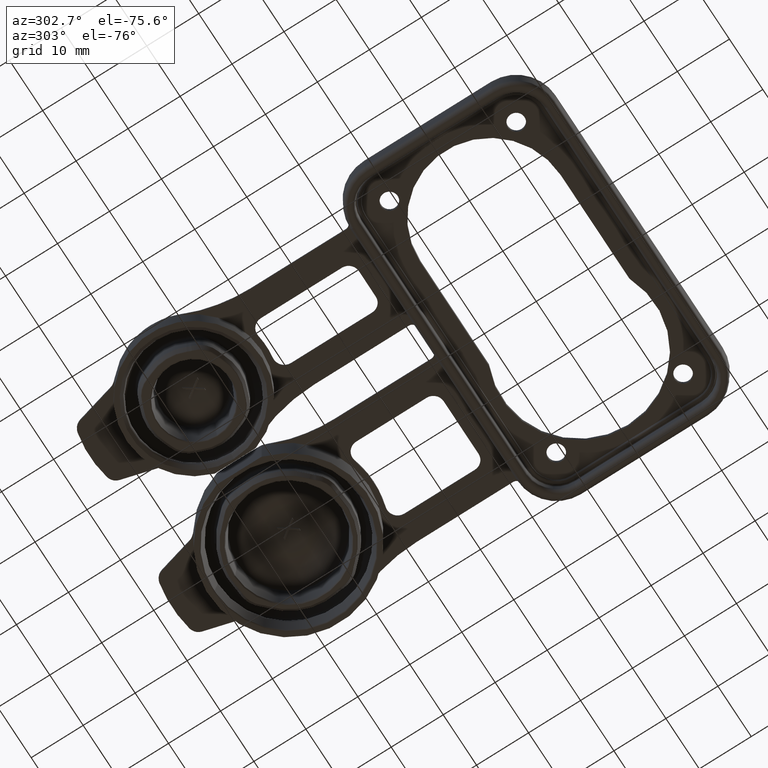
[diagram: clean part render]
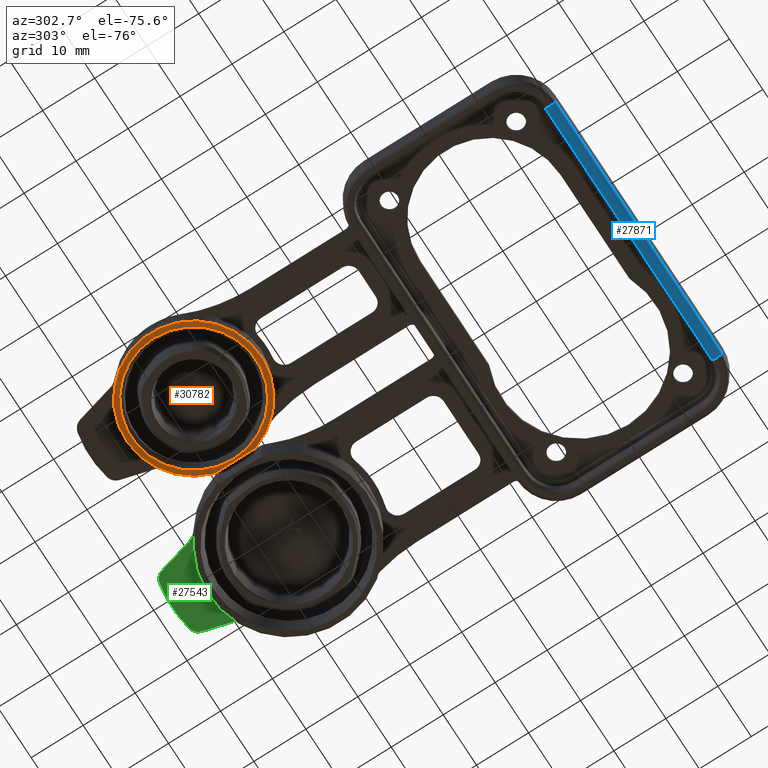
[diagram: same view with three faces highlighted in distinct colors, each labeled with its STEP entity id]
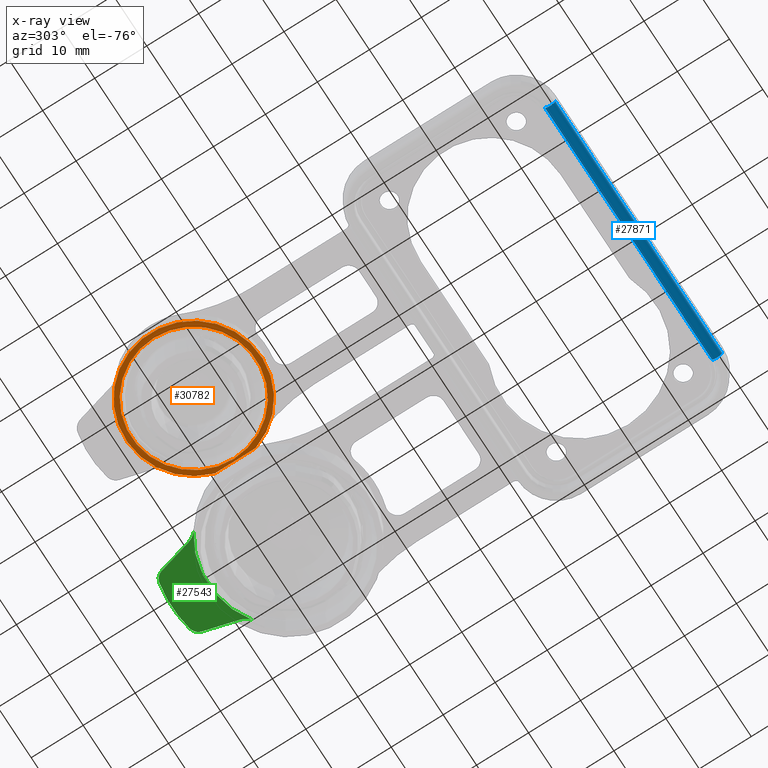
[diagram: x-ray of the same camera — body ghosted, the three highlighted faces saturated]
A machine part, auxiliary view with three faces highlighted in distinct colors.
The next image is the same camera in x-ray (body ghosted, the three faces saturated) — at least one of them is partly hidden behind the body in this view.
Their STEP definitions:

[orange] entity #30782 — the highlighted planar face has unit normal (0, 0, 1).
#10950=CARTESIAN_POINT('',(-1.54E1,5.6E1,-4.8E0));
#10951=DIRECTION('',(0.E0,0.E0,-1.E0));
#10952=DIRECTION('',(9.508196721311E-1,-3.097449775031E-1,0.E0));
#10953=AXIS2_PLACEMENT_3D('',#10950,#10951,#10952);
#10985=CARTESIAN_POINT('',(-1.54E1,5.6E1,-4.8E0));
#10986=DIRECTION('',(0.E0,0.E0,1.E0));
#10987=DIRECTION('',(-1.E0,0.E0,0.E0));
#10988=AXIS2_PLACEMENT_3D('',#10985,#10986,#10987);
#10990=CARTESIAN_POINT('',(-1.54E1,5.6E1,-4.8E0));
#10991=DIRECTION('',(0.E0,0.E0,-1.E0));
#10992=DIRECTION('',(-1.E0,0.E0,0.E0));
#10993=AXIS2_PLACEMENT_3D('',#10990,#10991,#10992);
#10995=CARTESIAN_POINT('',(-3.8E0,5.222111127446E1,-4.8E0));
#10996=DIRECTION('',(0.E0,0.E0,-1.E0));
#10997=DIRECTION('',(1.E0,0.E0,0.E0));
#10998=AXIS2_PLACEMENT_3D('',#10995,#10996,#10997);
#11000=DIRECTION('',(0.E0,1.E0,0.E0));
#11001=VECTOR('',#11000,7.557777451076E0);
#11002=CARTESIAN_POINT('',(-3.E0,5.222111127446E1,-4.8E0));
#11003=LINE('',#11002,#11001);
#11004=CARTESIAN_POINT('',(-3.8E0,5.977888872554E1,-4.8E0));
#11005=DIRECTION('',(0.E0,0.E0,-1.E0));
#11006=DIRECTION('',(9.508196721312E-1,3.097449775031E-1,0.E0));
#11007=AXIS2_PLACEMENT_3D('',#11004,#11005,#11006);
#16863=CARTESIAN_POINT('',(-2.74E1,5.6E1,-4.8E0));
#16864=VERTEX_POINT('',#16863);
#16873=CARTESIAN_POINT('',(-3.4E0,5.6E1,-4.8E0));
#16874=VERTEX_POINT('',#16873);
#18318=CARTESIAN_POINT('',(-3.E0,5.222111127446E1,-4.8E0));
#18319=CARTESIAN_POINT('',(-3.039344262295E0,5.197331529246E1,-4.8E0));
#18320=VERTEX_POINT('',#18318);
#18321=VERTEX_POINT('',#18319);
#18332=CARTESIAN_POINT('',(-3.039344262295E0,6.002668470754E1,-4.8E0));
#18333=CARTESIAN_POINT('',(-3.E0,5.977888872554E1,-4.8E0));
#18334=VERTEX_POINT('',#18332);
#18335=VERTEX_POINT('',#18333);
#30763=CARTESIAN_POINT('',(-1.54E1,5.6E1,-4.8E0));
#30764=DIRECTION('',(0.E0,0.E0,1.E0));
#30765=DIRECTION('',(-1.E0,0.E0,0.E0));
#30766=AXIS2_PLACEMENT_3D('',#30763,#30764,#30765);
#30767=PLANE('',#30766);
#30768=ORIENTED_EDGE('',*,*,#30753,.F.);
#30770=ORIENTED_EDGE('',*,*,#30769,.T.);
#30772=ORIENTED_EDGE('',*,*,#30771,.F.);
#30773=ORIENTED_EDGE('',*,*,#30727,.F.);
#30774=EDGE_LOOP('',(#30768,#30770,#30772,#30773));
#30775=FACE_OUTER_BOUND('',#30774,.F.);
#30777=ORIENTED_EDGE('',*,*,#30776,.F.);
#30779=ORIENTED_EDGE('',*,*,#30778,.T.);
#30780=EDGE_LOOP('',(#30777,#30779));
#30781=FACE_BOUND('',#30780,.F.);
#30782=ADVANCED_FACE('',(#30775,#30781),#30767,.F.);
#10954=CIRCLE('',#10953,1.3E1);
#10989=CIRCLE('',#10988,1.2E1);
#10994=CIRCLE('',#10993,1.2E1);
#10999=CIRCLE('',#10998,8.E-1);
#11008=CIRCLE('',#11007,8.E-1);
#30727=EDGE_CURVE('',#18321,#18334,#10954,.T.);
#30753=EDGE_CURVE('',#18320,#18321,#10999,.T.);
#30769=EDGE_CURVE('',#18320,#18335,#11003,.T.);
#30771=EDGE_CURVE('',#18334,#18335,#11008,.T.);
#30776=EDGE_CURVE('',#16864,#16874,#10989,.T.);
#30778=EDGE_CURVE('',#16864,#16874,#10994,.T.);

[blue] entity #27871 — the highlighted cylindrical surface (edge-blend (fillet) strip) has radius 1 mm, axis along (-1, 0, 0).
#7370=DIRECTION('',(-1.E0,0.E0,0.E0));
#7371=VECTOR('',#7370,5.E1);
#7372=CARTESIAN_POINT('',(2.5E1,-1.77E1,-2.E0));
#7373=LINE('',#7372,#7371);
#7378=CARTESIAN_POINT('',(2.5E1,-1.87E1,-2.E0));
#7379=DIRECTION('',(-1.E0,0.E0,0.E0));
#7380=DIRECTION('',(0.E0,1.E0,0.E0));
#7381=AXIS2_PLACEMENT_3D('',#7378,#7379,#7380);
#7391=DIRECTION('',(1.E0,0.E0,0.E0));
#7392=VECTOR('',#7391,5.E1);
#7393=CARTESIAN_POINT('',(-2.5E1,-1.97E1,-2.E0));
#7394=LINE('',#7393,#7392);
#7426=CARTESIAN_POINT('',(-2.5E1,-1.87E1,-2.E0));
#7427=DIRECTION('',(-1.E0,0.E0,0.E0));
#7428=DIRECTION('',(0.E0,1.E0,0.E0));
#7429=AXIS2_PLACEMENT_3D('',#7426,#7427,#7428);
#15065=CARTESIAN_POINT('',(-2.5E1,-1.97E1,-2.E0));
#15066=CARTESIAN_POINT('',(2.5E1,-1.97E1,-2.E0));
#15067=VERTEX_POINT('',#15065);
#15068=VERTEX_POINT('',#15066);
#15085=CARTESIAN_POINT('',(2.5E1,-1.77E1,-2.E0));
#15086=VERTEX_POINT('',#15085);
#15087=CARTESIAN_POINT('',(-2.5E1,-1.77E1,-2.E0));
#15088=VERTEX_POINT('',#15087);
#27858=CARTESIAN_POINT('',(2.5E1,-1.87E1,-2.E0));
#27859=DIRECTION('',(-1.E0,0.E0,0.E0));
#27860=DIRECTION('',(0.E0,1.E0,0.E0));
#27861=AXIS2_PLACEMENT_3D('',#27858,#27859,#27860);
#27862=CYLINDRICAL_SURFACE('',#27861,1.E0);
#27864=ORIENTED_EDGE('',*,*,#27863,.T.);
#27865=ORIENTED_EDGE('',*,*,#27826,.F.);
#27866=ORIENTED_EDGE('',*,*,#27849,.T.);
#27868=ORIENTED_EDGE('',*,*,#27867,.T.);
#27869=EDGE_LOOP('',(#27864,#27865,#27866,#27868));
#27870=FACE_OUTER_BOUND('',#27869,.F.);
#27871=ADVANCED_FACE('',(#27870),#27862,.T.);
#7382=CIRCLE('',#7381,1.E0);
#7430=CIRCLE('',#7429,1.E0);
#27826=EDGE_CURVE('',#15086,#15068,#7382,.T.);
#27849=EDGE_CURVE('',#15086,#15088,#7373,.T.);
#27863=EDGE_CURVE('',#15067,#15068,#7394,.T.);
#27867=EDGE_CURVE('',#15088,#15067,#7430,.T.);

[green] entity #27543 — the highlighted planar face has unit normal (0, 0, 1).
#5694=CARTESIAN_POINT('',(1.3E1,5.6E1,-5.E-1));
#5695=DIRECTION('',(0.E0,0.E0,1.E0));
#5696=DIRECTION('',(5.762100873116E-1,8.173016183028E-1,0.E0));
#5697=AXIS2_PLACEMENT_3D('',#5694,#5695,#5696);
#7116=CARTESIAN_POINT('',(2.360226560653E1,7.103834977677E1,-5.E-1));
#7117=DIRECTION('',(0.E0,0.E0,1.E0));
#7118=DIRECTION('',(-9.659258262891E-1,-2.588190451025E-1,0.E0));
#7119=AXIS2_PLACEMENT_3D('',#7116,#7117,#7118);
#7162=CARTESIAN_POINT('',(8.899184695864E0,7.598357610242E1,-5.E-1));
#7163=DIRECTION('',(0.E0,0.E0,-1.E0));
#7164=DIRECTION('',(-9.659258262891E-1,2.588190451025E-1,0.E0));
#7165=AXIS2_PLACEMENT_3D('',#7162,#7163,#7164);
#7167=DIRECTION('',(-2.588190451025E-1,-9.659258262891E-1,0.E0));
#7168=VECTOR('',#7167,6.459420983841E0);
#7169=CARTESIAN_POINT('',(6.967333043286E0,7.650121419263E1,-5.E-1));
#7170=LINE('',#7169,#7168);
#7171=DIRECTION('',(-2.588190451025E-1,9.659258262891E-1,0.E0));
#7172=VECTOR('',#7171,6.459420983841E0);
#7173=CARTESIAN_POINT('',(2.070448812767E1,7.026189264146E1,-5.E-1));
#7174=LINE('',#7173,#7172);
#7175=CARTESIAN_POINT('',(1.710081530414E1,7.598357610242E1,-5.E-1));
#7176=DIRECTION('',(0.E0,0.E0,-1.E0));
#7177=DIRECTION('',(2.010203580459E-1,9.795870638443E-1,0.E0));
#7178=AXIS2_PLACEMENT_3D('',#7175,#7176,#7177);
#7180=CARTESIAN_POINT('',(1.3E1,5.6E1,-5.E-1));
#7181=DIRECTION('',(0.E0,0.E0,1.E0));
#7182=DIRECTION('',(2.010203580459E-1,9.795870638443E-1,0.E0));
#7183=AXIS2_PLACEMENT_3D('',#7180,#7181,#7182);
#7198=CARTESIAN_POINT('',(2.397734393466E0,7.103834977677E1,-5.E-1));
#7199=DIRECTION('',(0.E0,0.E0,1.E0));
#7200=DIRECTION('',(5.762100873116E-1,-8.173016183028E-1,0.E0));
#7201=AXIS2_PLACEMENT_3D('',#7198,#7199,#7200);
#16360=CARTESIAN_POINT('',(4.126364655401E0,6.858644492186E1,-5.E-1));
#16361=CARTESIAN_POINT('',(5.295511872333E0,7.026189264146E1,-5.E-1));
#16362=VERTEX_POINT('',#16360);
#16363=VERTEX_POINT('',#16361);
#16364=CARTESIAN_POINT('',(2.070448812767E1,7.026189264146E1,-5.E-1));
#16365=CARTESIAN_POINT('',(2.187363534460E1,6.858644492186E1,-5.E-1));
#16366=VERTEX_POINT('',#16364);
#16367=VERTEX_POINT('',#16365);
#16368=CARTESIAN_POINT('',(6.967333043286E0,7.650121419263E1,-5.E-1));
#16369=CARTESIAN_POINT('',(8.497143979772E0,7.794275023011E1,-5.E-1));
#16370=VERTEX_POINT('',#16368);
#16371=VERTEX_POINT('',#16369);
#16372=CARTESIAN_POINT('',(1.750285602023E1,7.794275023011E1,-5.E-1));
#16373=CARTESIAN_POINT('',(1.903266695671E1,7.650121419263E1,-5.E-1));
#16374=VERTEX_POINT('',#16372);
#16375=VERTEX_POINT('',#16373);
#27524=CARTESIAN_POINT('',(1.3E1,0.E0,-5.E-1));
#27525=DIRECTION('',(0.E0,0.E0,1.E0));
#27526=DIRECTION('',(1.E0,0.E0,0.E0));
#27527=AXIS2_PLACEMENT_3D('',#27524,#27525,#27526);
#27528=PLANE('',#27527);
#27529=ORIENTED_EDGE('',*,*,#27517,.F.);
#27530=ORIENTED_EDGE('',*,*,#24711,.T.);
#27532=ORIENTED_EDGE('',*,*,#27531,.F.);
#27533=ORIENTED_EDGE('',*,*,#25155,.F.);
#27534=ORIENTED_EDGE('',*,*,#27393,.F.);
#27536=ORIENTED_EDGE('',*,*,#27535,.T.);
#27538=ORIENTED_EDGE('',*,*,#27537,.F.);
#27540=ORIENTED_EDGE('',*,*,#27539,.T.);
#27541=EDGE_LOOP('',(#27529,#27530,#27532,#27533,#27534,#27536,#27538,#27540));
#27542=FACE_OUTER_BOUND('',#27541,.F.);
#27543=ADVANCED_FACE('',(#27542),#27528,.F.);
#5698=CIRCLE('',#5697,1.54E1);
#7120=CIRCLE('',#7119,3.E0);
#7166=CIRCLE('',#7165,2.E0);
#7179=CIRCLE('',#7178,2.E0);
#7184=CIRCLE('',#7183,2.24E1);
#7202=CIRCLE('',#7201,3.E0);
#24711=EDGE_CURVE('',#16370,#16363,#7170,.T.);
#25155=EDGE_CURVE('',#16367,#16362,#5698,.T.);
#27393=EDGE_CURVE('',#16366,#16367,#7120,.T.);
#27517=EDGE_CURVE('',#16370,#16371,#7166,.T.);
#27531=EDGE_CURVE('',#16362,#16363,#7202,.T.);
#27535=EDGE_CURVE('',#16366,#16375,#7174,.T.);
#27537=EDGE_CURVE('',#16374,#16375,#7179,.T.);
#27539=EDGE_CURVE('',#16374,#16371,#7184,.T.);